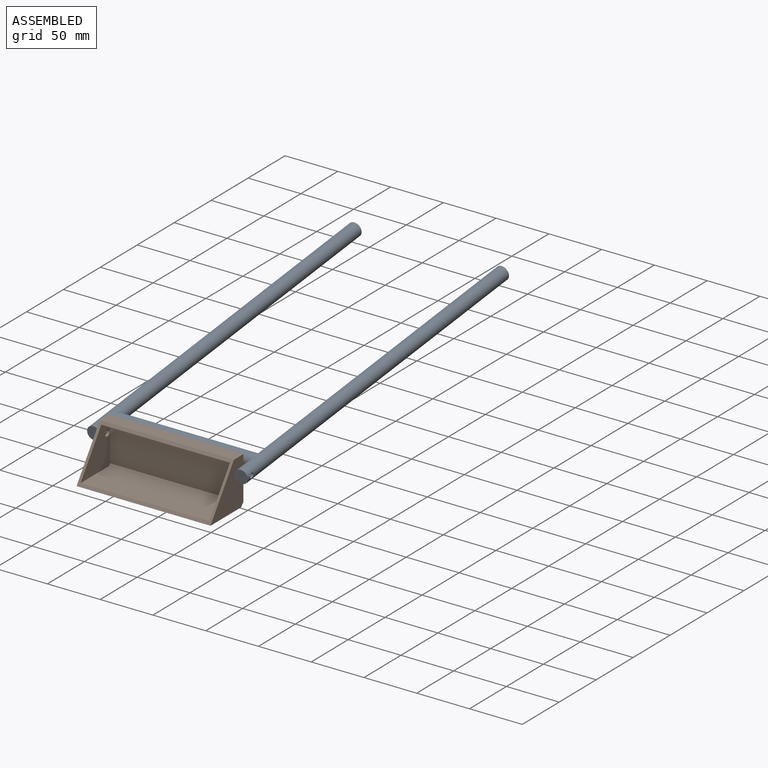
[diagram: assembled view]
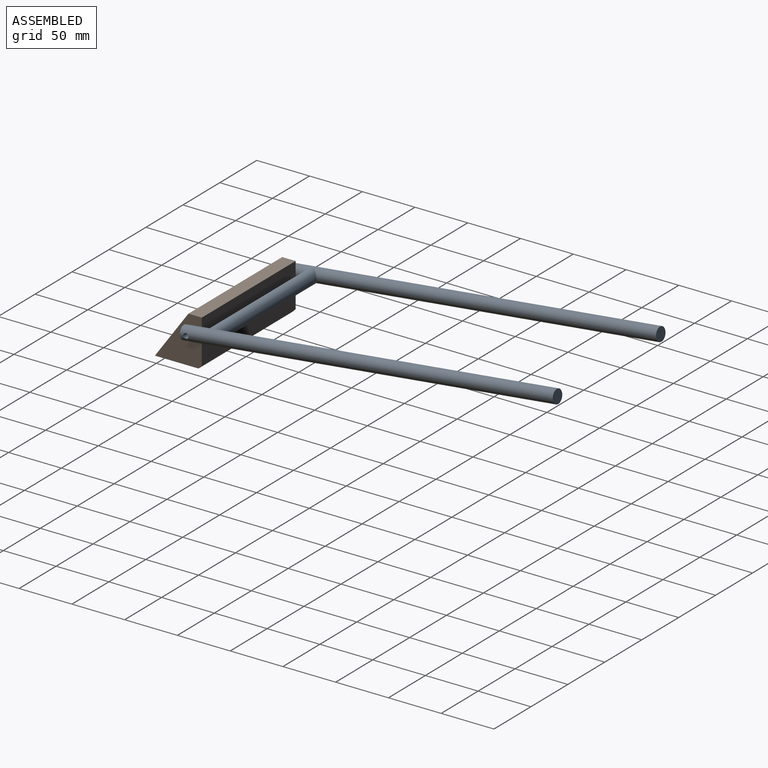
[diagram: assembled view, second angle]
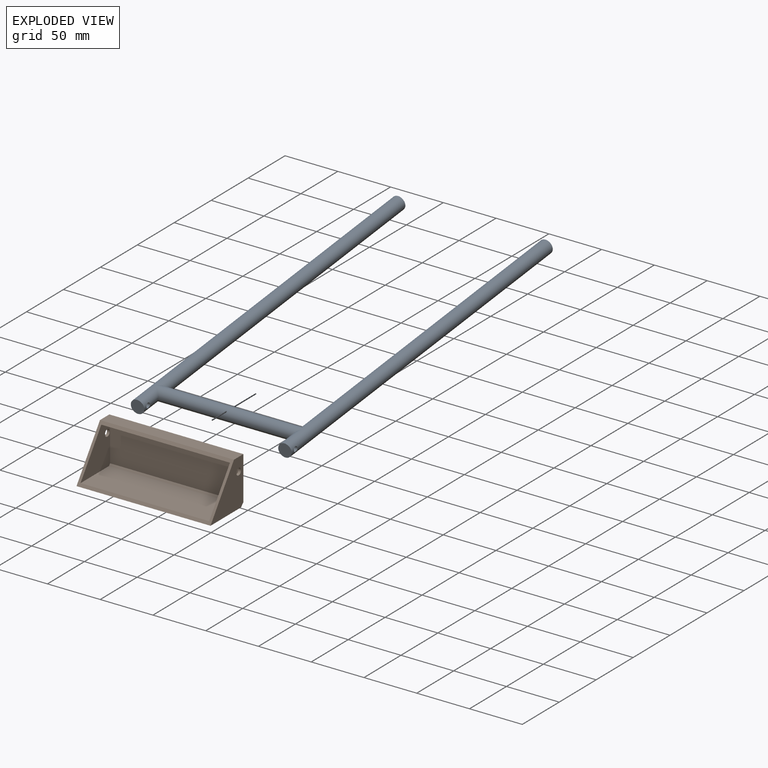
[diagram: exploded view]
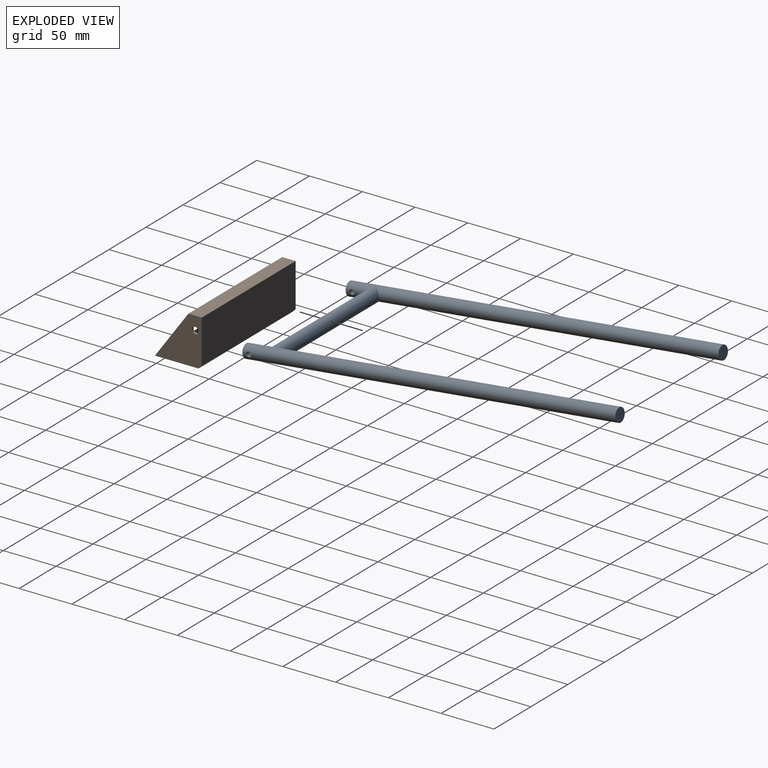
[diagram: exploded view, second angle]
ASSEMBLY  parts=2 mates=2
PART A: 12 faces, bbox 152.4x355.6x12.7 mm
  f0: cylinder r=6.35mm len=139.7mm, axis (-1,0,0), area 5251.2mm2, adj f1,f4
  f1: cylinder r=6.35mm len=355.6mm, axis (0,1,0), area 13990.3mm2, adj f0,f2,f3,f8
  f2: plane 12.7x12.7mm, normal (0,-1,0), area 126.7mm2, adj f1
  f3: plane 12.7x12.7mm, normal (0,1,0), area 126.7mm2, adj f1
  f4: cylinder r=6.35mm len=355.6mm, axis (0,1,0), area 13990.3mm2, adj f0,f5,f6,f7
  f5: plane 12.7x12.7mm, normal (0,-1,0), area 126.7mm2, adj f4
  f6: plane 12.7x12.7mm, normal (0,1,0), area 126.7mm2, adj f4
  f7: cylinder r=2.38mm len=12.7mm, axis (1,0,0), area 183.1mm2, adj f4
  f8: cylinder r=2.38mm len=12.7mm, axis (1,0,0), area 183.1mm2, adj f1
  f9: cylinder r=6.35mm len=9.53mm, axis (0,1,0), area 77.8mm2, adj f11
  f10: cylinder r=6.35mm len=9.53mm, axis (0,1,0), area 77.8mm2, adj f11
  f11: cylinder r=4.76mm len=131.3mm, axis (1,0,0), area 3861.4mm2, adj f9,f10
PART B: 15 faces, bbox 127x44.5x44.5 mm
  f0: plane 127x44.45mm, normal (0,-0.81,0.58), area 1038.6mm2, adj f3,f4,f5,f6,f9,f10,f11,f12
  f1: plane 127x3.18mm, normal (0,0.71,-0.71), area 570.2mm2, adj f2,f4,f5,f6
  f2: plane 127x41.28mm, normal (0,1,0), area 5241.9mm2, adj f1,f3,f5,f6
  f3: plane 127x12.7mm, normal (0,0,1), area 1612.9mm2, adj f0,f2,f5,f6
  f4: plane 127x41.28mm, normal (0,0,-1), area 5241.9mm2, adj f0,f1,f5,f6
  f5: plane 44.45x44.45mm, normal (1,0,0), area 1233.4mm2, adj f0,f1,f2,f3,f4,f14
  f6: plane 44.45x44.45mm, normal (-1,0,0), area 1233.4mm2, adj f0,f1,f2,f3,f4,f13
  f7: plane 121.92x1.69mm, normal (0,-0.71,0.71), area 290.9mm2, adj f8,f10,f11,f12
  f8: plane 121.92x37.68mm, normal (0,-1,0), area 4594.3mm2, adj f7,f9,f11,f12
  f9: plane 121.92x11.97mm, normal (0,0,-1), area 1459.9mm2, adj f0,f8,f11,f12
  f10: plane 121.92x38.41mm, normal (0,0,1), area 4682.8mm2, adj f0,f7,f11,f12
  f11: plane 40.1x39.37mm, normal (-1,0,0), area 991.9mm2, adj f0,f7,f8,f9,f10,f14
  f12: plane 40.1x39.37mm, normal (1,0,0), area 991.9mm2, adj f0,f7,f8,f9,f10,f13
  f13: cylinder r=3.17mm len=6.35mm, axis (1,0,0), area 50.7mm2, adj f6,f12
  f14: cylinder r=3.17mm len=6.35mm, axis (1,0,0), area 50.7mm2, adj f5,f11
PLACE A rot(axis=(-1,0,0),173.6deg) t=(-13.25,6.68,42.42)mm
PLACE B t=(-13.17,-6.69,8.46)mm fixed
MATE planar A.f7 <-> B.f13  axis (1,0,0) through (-76.67,-13.04,40.21)mm
MATE cylindrical A.f7 <-> B.f13  axis (1,0,0) through (-76.67,-13.04,40.21)mm
